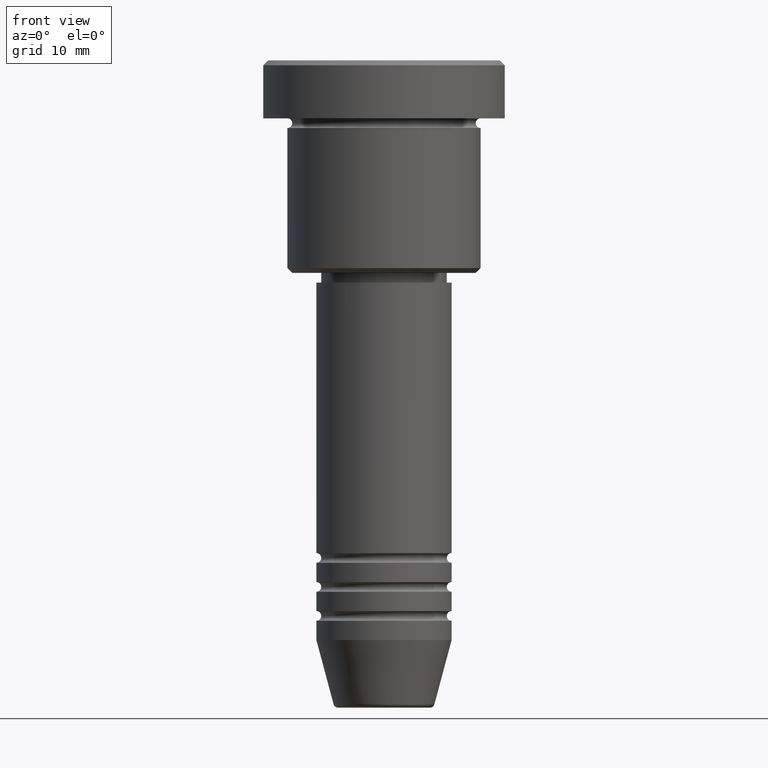
[diagram: clean part render]
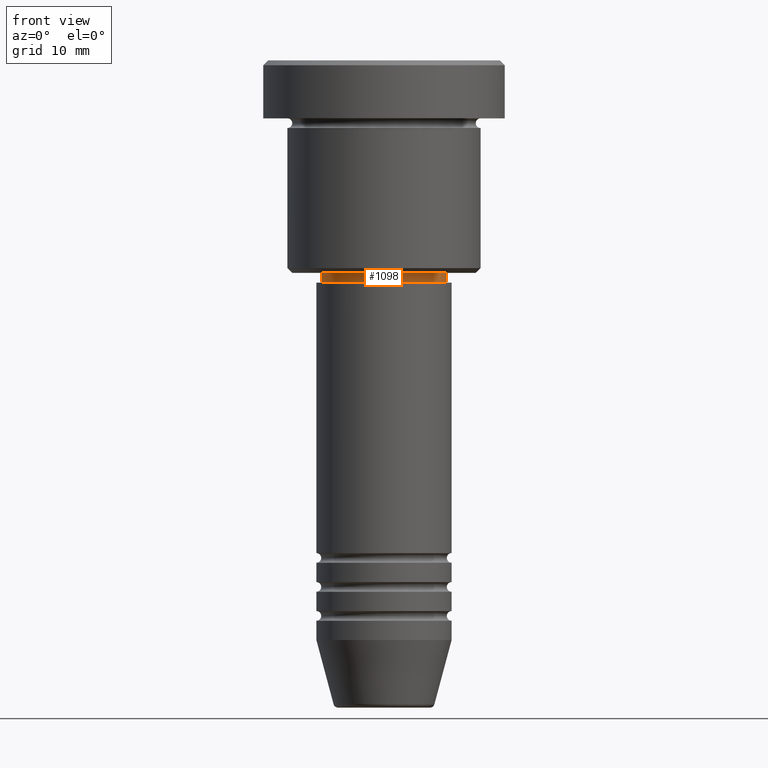
[diagram: same view with one face highlighted and labeled with its STEP entity id]
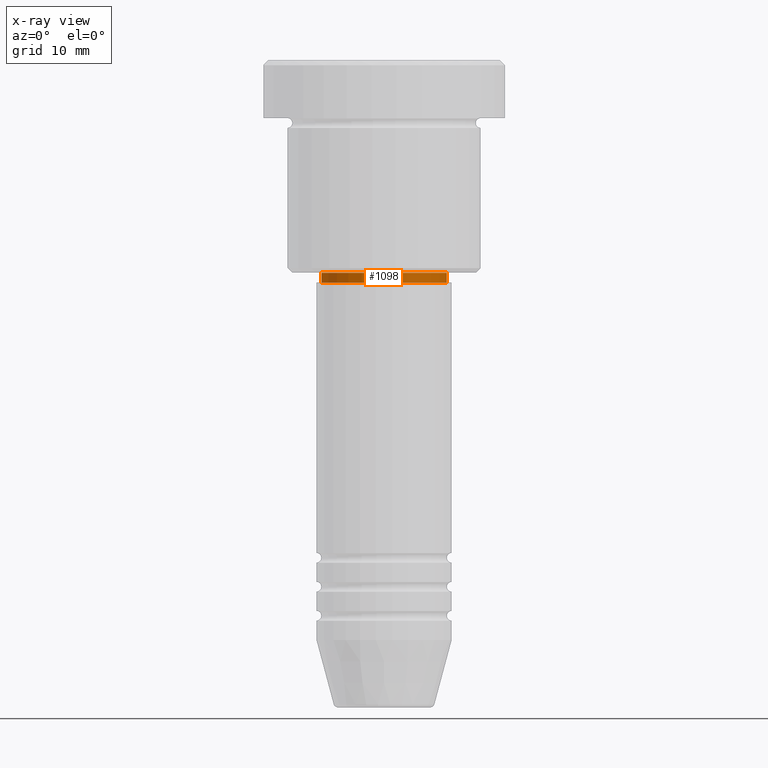
[diagram: x-ray of the same camera — body ghosted, the highlighted face saturated]
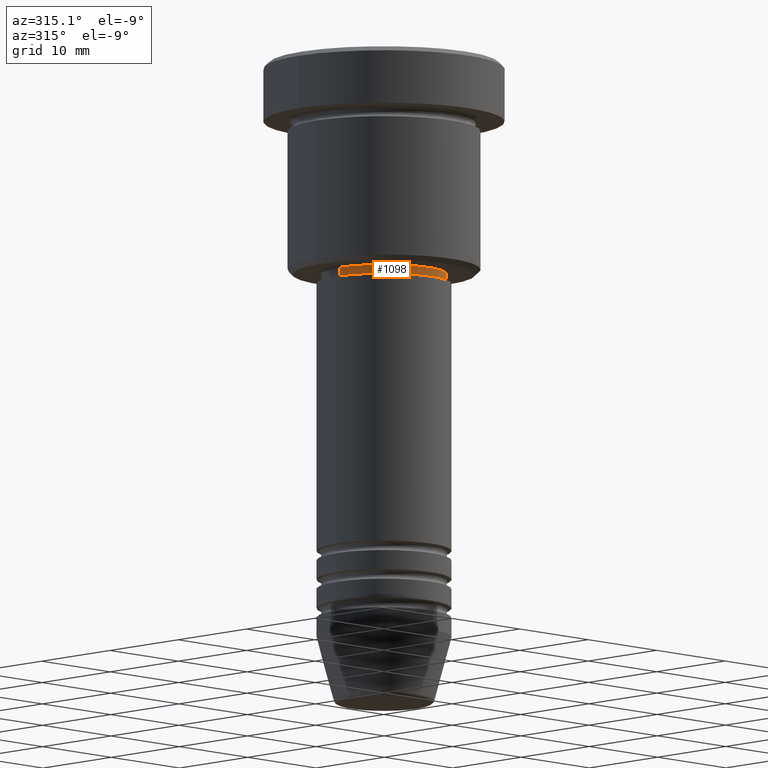
[diagram: same view with one face highlighted and labeled with its STEP entity id]
A machine part, front view. The second image highlights one B-rep face of the part: STEP entity #1098.
The next image is the same camera in x-ray: the body ghosted, the highlighted face saturated — about 0% of this face is hidden behind the body in this view.
A second angle (auxiliary view) of the same face is appended — the face is thin or edge-on in the first view.
In plain terms, the highlighted cylindrical surface (partial cylindrical patch) has radius 6.5 mm, axis along (-0, -0, 1).
Its self-contained STEP definition (entity closure, byte-faithful):
#11 = CARTESIAN_POINT ( 'NONE',  ( 0.000000000000000000, 0.000000000000000000, -21.99999999999999645 ) ) ;
#71 = VECTOR ( 'NONE', #791, 1000.000000000000000 ) ;
#99 = EDGE_CURVE ( 'NONE', #474, #190, #785, .T. ) ;
#190 = VERTEX_POINT ( 'NONE', #824 ) ;
#215 = CYLINDRICAL_SURFACE ( 'NONE', #966, 6.500000000000000000 ) ;
#224 = DIRECTION ( 'NONE',  ( 1.000000000000000000, 0.000000000000000000, 0.000000000000000000 ) ) ;
#267 = VECTOR ( 'NONE', #919, 1000.000000000000000 ) ;
#281 = CARTESIAN_POINT ( 'NONE',  ( 6.500000000000000000, 0.000000000000000000, -21.99999999999999645 ) ) ;
#285 = EDGE_LOOP ( 'NONE', ( #468, #658, #515, #1106 ) ) ;
#354 = CARTESIAN_POINT ( 'NONE',  ( 6.500000000000000000, 0.000000000000000000, -22.99999999999999289 ) ) ;
#371 = CARTESIAN_POINT ( 'NONE',  ( -6.500000000000000000, 7.960204194457795477E-16, -22.99999999999999289 ) ) ;
#426 = DIRECTION ( 'NONE',  ( -0.000000000000000000, -0.000000000000000000, 1.000000000000000000 ) ) ;
#463 = CIRCLE ( 'NONE', #867, 6.500000000000000000 ) ;
#468 = ORIENTED_EDGE ( 'NONE', *, *, #99, .F. ) ;
#474 = VERTEX_POINT ( 'NONE', #371 ) ;
#501 = AXIS2_PLACEMENT_3D ( 'NONE', #716, #995, #636 ) ;
#515 = ORIENTED_EDGE ( 'NONE', *, *, #990, .T. ) ;
#525 = CARTESIAN_POINT ( 'NONE',  ( -6.500000000000000000, 7.960204194457795477E-16, 0.000000000000000000 ) ) ;
#606 = CARTESIAN_POINT ( 'NONE',  ( 0.000000000000000000, 0.000000000000000000, 0.000000000000000000 ) ) ;
#636 = DIRECTION ( 'NONE',  ( 1.000000000000000000, 0.000000000000000000, 0.000000000000000000 ) ) ;
#658 = ORIENTED_EDGE ( 'NONE', *, *, #836, .T. ) ;
#716 = CARTESIAN_POINT ( 'NONE',  ( 0.000000000000000000, 0.000000000000000000, -22.99999999999999289 ) ) ;
#734 = DIRECTION ( 'NONE',  ( 1.000000000000000000, 0.000000000000000000, 0.000000000000000000 ) ) ;
#785 = LINE ( 'NONE', #525, #71 ) ;
#791 = DIRECTION ( 'NONE',  ( -0.000000000000000000, -0.000000000000000000, 1.000000000000000000 ) ) ;
#813 = EDGE_CURVE ( 'NONE', #190, #937, #463, .T. ) ;
#824 = CARTESIAN_POINT ( 'NONE',  ( -6.500000000000000000, 7.960204194457795477E-16, -21.99999999999999645 ) ) ;
#836 = EDGE_CURVE ( 'NONE', #474, #864, #1116, .T. ) ;
#843 = CARTESIAN_POINT ( 'NONE',  ( 6.500000000000000000, 0.000000000000000000, 0.000000000000000000 ) ) ;
#864 = VERTEX_POINT ( 'NONE', #354 ) ;
#867 = AXIS2_PLACEMENT_3D ( 'NONE', #11, #1095, #734 ) ;
#919 = DIRECTION ( 'NONE',  ( -0.000000000000000000, -0.000000000000000000, 1.000000000000000000 ) ) ;
#937 = VERTEX_POINT ( 'NONE', #281 ) ;
#966 = AXIS2_PLACEMENT_3D ( 'NONE', #606, #426, #224 ) ;
#970 = FACE_OUTER_BOUND ( 'NONE', #285, .T. ) ;
#990 = EDGE_CURVE ( 'NONE', #864, #937, #1034, .T. ) ;
#995 = DIRECTION ( 'NONE',  ( -0.000000000000000000, -0.000000000000000000, 1.000000000000000000 ) ) ;
#1034 = LINE ( 'NONE', #843, #267 ) ;
#1095 = DIRECTION ( 'NONE',  ( -0.000000000000000000, -0.000000000000000000, 1.000000000000000000 ) ) ;
#1098 = ADVANCED_FACE ( 'NONE', ( #970 ), #215, .T. ) ;
#1106 = ORIENTED_EDGE ( 'NONE', *, *, #813, .F. ) ;
#1116 = CIRCLE ( 'NONE', #501, 6.500000000000000000 ) ;